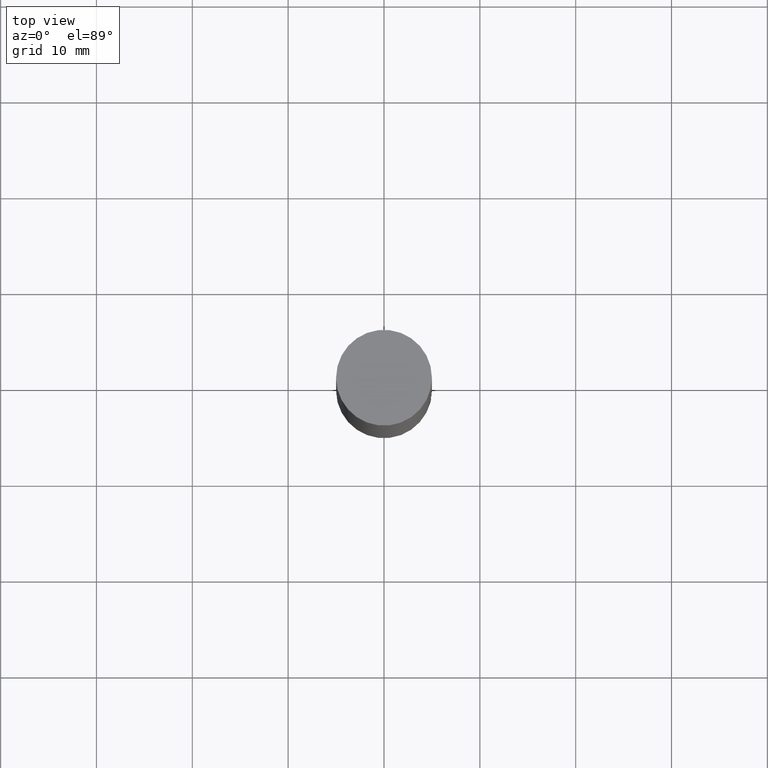
[diagram: clean part render]
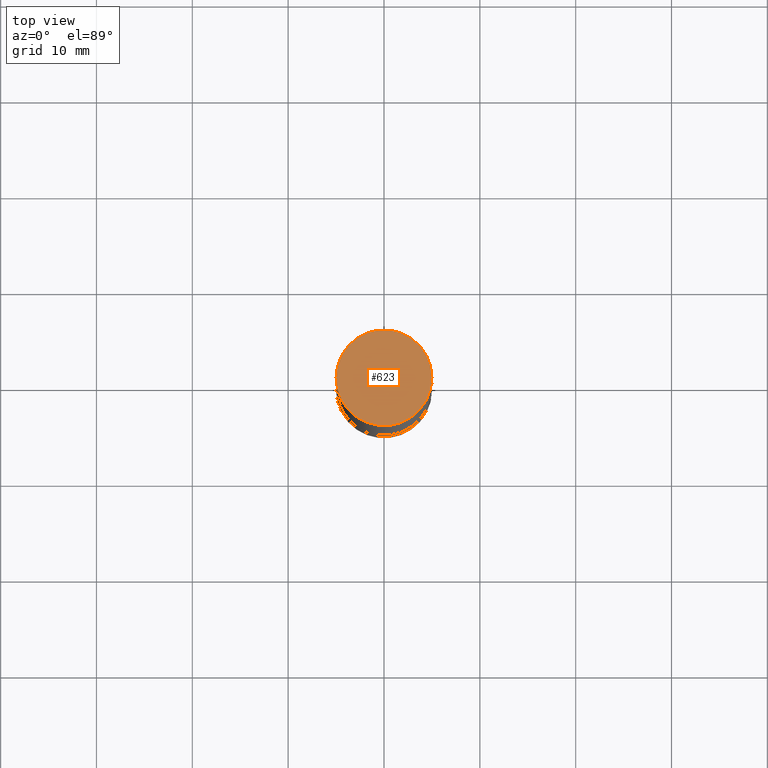
[diagram: same view with one face highlighted and labeled with its STEP entity id]
A machine part, top view. The second image highlights one B-rep face of the part: STEP entity #623.
In plain terms, the highlighted planar face has unit normal (0, 0, 1).
Its self-contained STEP definition (entity closure, byte-faithful):
#60 = EDGE_CURVE ( 'NONE', #226, #310, #210, .T. ) ;
#61 = CARTESIAN_POINT ( 'NONE',  ( -0.1968500000000000250, 3.899287883846529545E-16, 5.463695987328561936E-16 ) ) ;
#67 = DIRECTION ( 'NONE',  ( 2.445468806185136597E-29, 3.492890411551752677E-15, 1.000000000000000000 ) ) ;
#86 = FACE_OUTER_BOUND ( 'NONE', #212, .T. ) ;
#137 = CARTESIAN_POINT ( 'NONE',  ( 1.374596203102613789E-15, 0.1968500000000000250, -5.463695987328526437E-16 ) ) ;
#169 = AXIS2_PLACEMENT_3D ( 'NONE', #558, #67, #278 ) ;
#173 = DIRECTION ( 'NONE',  ( 2.445468806185136597E-29, 3.492890411551752677E-15, 1.000000000000000000 ) ) ;
#189 = CIRCLE ( 'NONE', #218, 0.1968500000000000250 ) ;
#210 = CIRCLE ( 'NONE', #169, 0.1968500000000000250 ) ;
#212 = EDGE_LOOP ( 'NONE', ( #526, #529 ) ) ;
#218 = AXIS2_PLACEMENT_3D ( 'NONE', #645, #173, #435 ) ;
#226 = VERTEX_POINT ( 'NONE', #61 ) ;
#232 = DIRECTION ( 'NONE',  ( -1.000000000000000000, 6.982962677686265922E-15, -9.839502134516470631E-33 ) ) ;
#249 = EDGE_CURVE ( 'NONE', #310, #226, #189, .T. ) ;
#278 = DIRECTION ( 'NONE',  ( 1.000000000000000000, -6.982962677686265922E-15, 0.000000000000000000 ) ) ;
#310 = VERTEX_POINT ( 'NONE', #595 ) ;
#435 = DIRECTION ( 'NONE',  ( 1.000000000000000000, -6.982962677686265922E-15, 0.000000000000000000 ) ) ;
#526 = ORIENTED_EDGE ( 'NONE', *, *, #249, .T. ) ;
#529 = ORIENTED_EDGE ( 'NONE', *, *, #60, .T. ) ;
#558 = CARTESIAN_POINT ( 'NONE',  ( 7.220980290903470182E-29, 2.080354946989631982E-18, 5.463695987328526437E-16 ) ) ;
#559 = DIRECTION ( 'NONE',  ( 2.438088387897959769E-29, 3.492890411551753071E-15, 1.000000000000000000 ) ) ;
#595 = CARTESIAN_POINT ( 'NONE',  ( 0.1968500000000000250, -1.372515848155552113E-15, 5.463695987328526437E-16 ) ) ;
#601 = AXIS2_PLACEMENT_3D ( 'NONE', #137, #559, #232 ) ;
#623 = ADVANCED_FACE ( 'NONE', ( #86 ), #663, .T. ) ;
#645 = CARTESIAN_POINT ( 'NONE',  ( 7.220980290903470182E-29, 2.080354946989631982E-18, 5.463695987328526437E-16 ) ) ;
#663 = PLANE ( 'NONE',  #601 ) ;